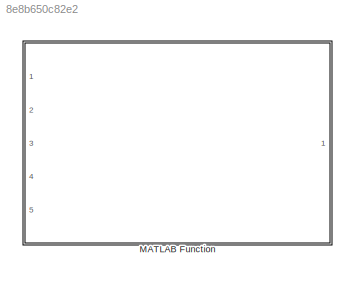
MODEL slx_8e8b650c82e2
KIND model
CONFIG AbsTol = auto
CONFIG EnableMultiTasking = off
CONFIG FixedStep = auto
CONFIG MaxStep = auto
CONFIG MinStep = auto
CONFIG RelTol = 1e-3
CONFIG SampleTimeConstraint = Unconstrained
CONFIG Solver = VariableStepAuto
CONFIG SolverName = VariableStepAuto
CONFIG StartTime = 0.0
CONFIG StopTime = 10.0
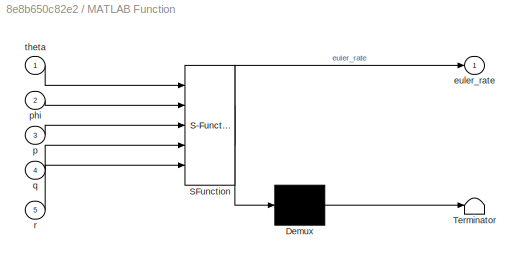
BLOCK [SubSystem] MATLAB Function
  ErrorFcn = Stateflow.Translate.translate
  PermitHierarchicalResolution = ExplicitOnly
  Ports = [5, 1]
  RequestExecContextInheritance = off
  SFBlockType = MATLAB Function
  TreatAsAtomicUnit = on
  Variant = off
BLOCK [Demux] MATLAB Function/ Demux 
  Outputs = 1
  Ports = [1, 1]
BLOCK [S-Function] MATLAB Function/ SFunction 
  EnableBusSupport = off
  FunctionName = sf_sfun
  PortCounts = [5 2]
  Ports = [5, 2]
  SFcnIsStateOwnerBlock = off
  SFunctionDeploymentMode = off
  Tag = Stateflow S-Function euler_rates 2
BLOCK [Terminator] MATLAB Function/ Terminator 
BLOCK [Outport] MATLAB Function/euler_rate
  IconDisplay = Port number
BLOCK [Inport] MATLAB Function/p
  IconDisplay = Port number
  Port = 3
BLOCK [Inport] MATLAB Function/phi
  IconDisplay = Port number
  Port = 2
BLOCK [Inport] MATLAB Function/q
  IconDisplay = Port number
  Port = 4
BLOCK [Inport] MATLAB Function/r
  IconDisplay = Port number
  Port = 5
BLOCK [Inport] MATLAB Function/theta
  IconDisplay = Port number
CHART MATLAB Function states=1 transitions=1
  STATE_LABEL 'eML_blk_kernel()'
  STATE_LABEL "SCRIPT:\nfunction euler_rate = euler_rates(theta,phi,p,q,r)\n%Under the following condition \n%Euler_rate=[xidot;thetadot;phidot] xidot around x thetadot around y phidot\n%around z \n%Rotation is around X-Y-Z axis\n%omegahatinertial=Rdot*R';\n% Ris Rsb\n% A comes from A*euler_rates=omegabody\n%omegabody=[p;q;r]\nA=[-cos(phi)*cos(theta),sin(phi),0;-cos(theta)*sin(phi),-cos(phi),0;sin(theta),0,-1];\neuler_rate...<+19ch>"
